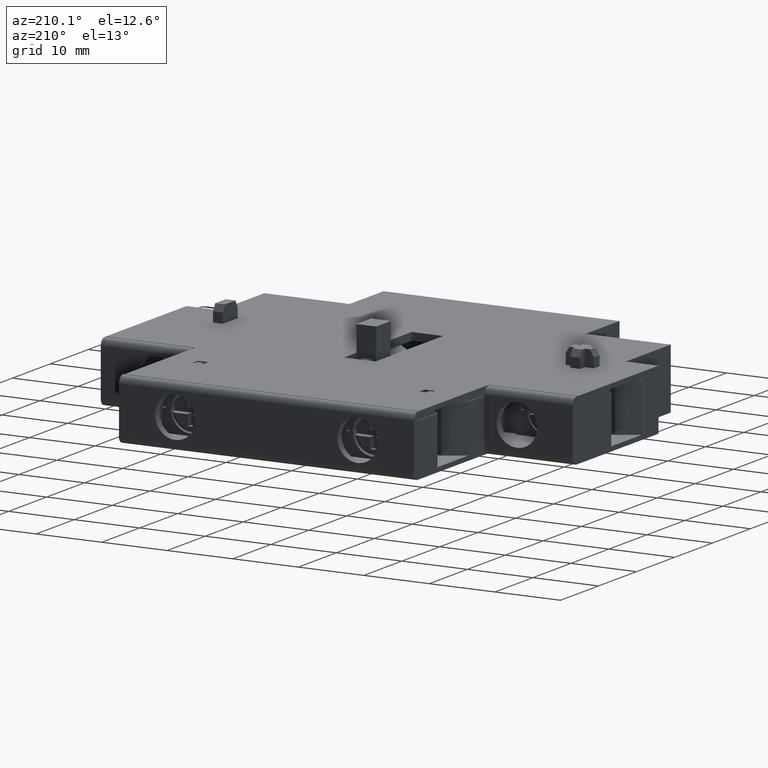
[diagram: clean part render]
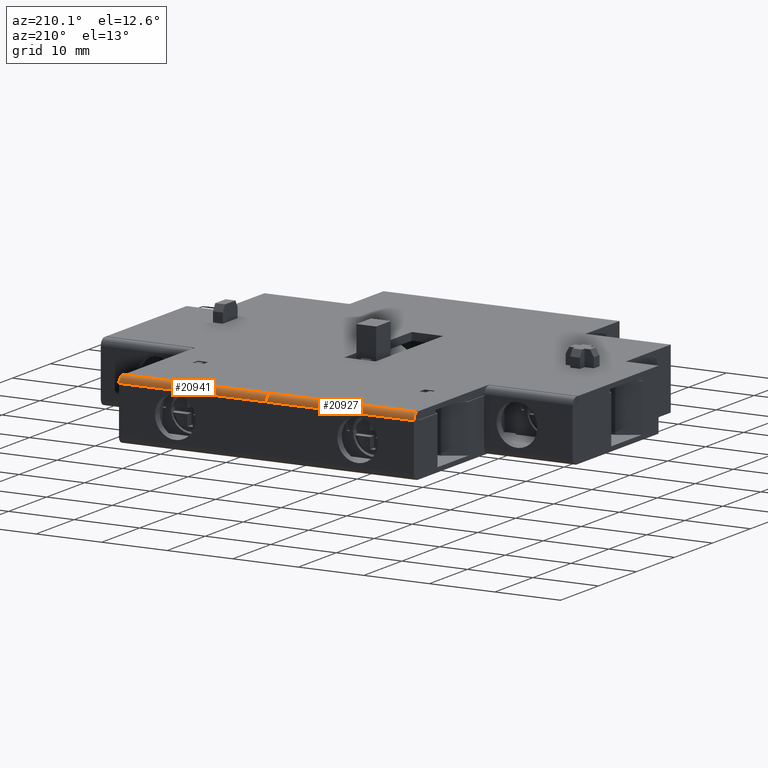
[diagram: same view with one multi-face feature highlighted, each face labeled with its STEP entity id]
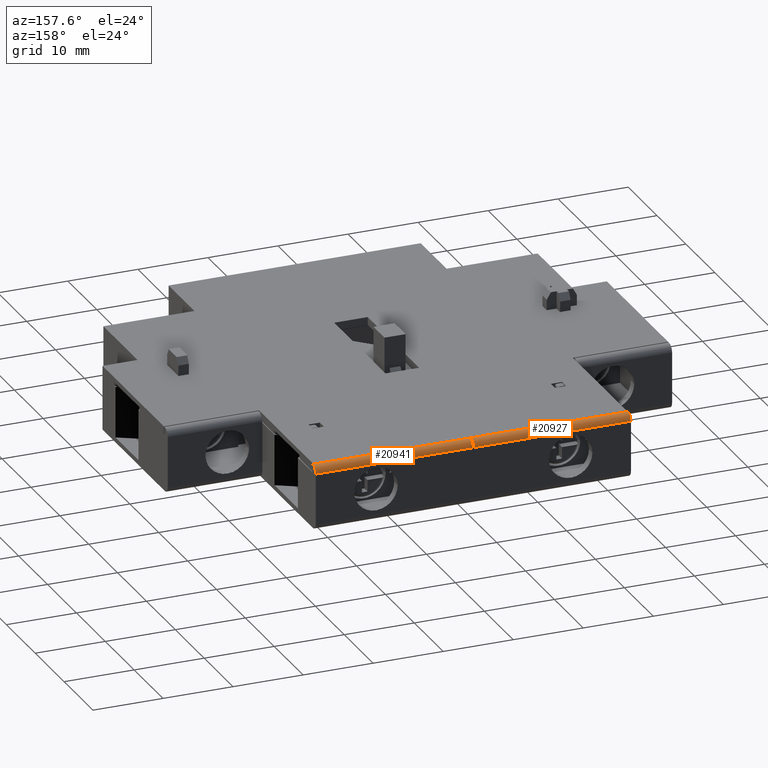
[diagram: same view with one multi-face feature highlighted, each face labeled with its STEP entity id]
A machine part, auxiliary view. The highlighted faces form ONE feature: a constant-radius fillet chain: 2 tangent blend faces with common blend radius 1 mm. The faces share edges in the B-rep.
A second angle (auxiliary view) of the same feature is appended — it is thin or edge-on in the first view.
Their STEP definitions:
[1] entity #20941 (Cylinder):
#9725=CARTESIAN_POINT('',(1.288110546778E1,7.791970650536E1,1.28E1));
#9726=DIRECTION('',(-1.E0,0.E0,0.E0));
#9727=DIRECTION('',(0.E0,-1.098560998964E-5,9.999999999397E-1));
#9728=AXIS2_PLACEMENT_3D('',#9725,#9726,#9727);
#9730=DIRECTION('',(9.999999999999E-1,3.598188413889E-12,4.150122044342E-7));
#9731=VECTOR('',#9730,2.25E1);
#9732=CARTESIAN_POINT('',(1.288110546778E1,7.891970650526E1,1.279998407086E1));
#9733=LINE('',#9732,#9731);
#9734=DIRECTION('',(1.E0,2.278497858141E-7,2.719720744911E-12));
#9735=VECTOR('',#9734,2.25E1);
#9736=CARTESIAN_POINT('',(1.288110546778E1,7.791969112550E1,1.379999999990E1));
#9737=LINE('',#9736,#9735);
#13045=CARTESIAN_POINT('',(3.538110546778E1,7.791970650536E1,1.28E1));
#13046=DIRECTION('',(-1.E0,0.E0,0.E0));
#13047=DIRECTION('',(0.E0,-8.788489992604E-6,9.999999999614E-1));
#13048=AXIS2_PLACEMENT_3D('',#13045,#13046,#13047);
#16600=CARTESIAN_POINT('',(1.288110546778E1,7.891970650526E1,1.279998407086E1));
#16601=VERTEX_POINT('',#16600);
#16602=CARTESIAN_POINT('',(1.288110546778E1,7.791969551975E1,1.379999999994E1));
#16603=VERTEX_POINT('',#16602);
#16604=CARTESIAN_POINT('',(3.538110546778E1,7.791969625212E1,1.379999999996E1));
#16605=VERTEX_POINT('',#16604);
#16606=CARTESIAN_POINT('',(3.538110546778E1,7.891970650534E1,1.279999340863E1));
#16607=VERTEX_POINT('',#16606);
#20928=CARTESIAN_POINT('',(1.243110546778E1,7.791970650536E1,1.28E1));
#20929=DIRECTION('',(1.E0,0.E0,0.E0));
#20930=DIRECTION('',(0.E0,9.393727128462E-1,-3.428978074586E-1));
#20931=AXIS2_PLACEMENT_3D('',#20928,#20929,#20930);
#20932=CYLINDRICAL_SURFACE('',#20931,1.000000000004E0);
#20934=ORIENTED_EDGE('',*,*,#20933,.F.);
#20935=ORIENTED_EDGE('',*,*,#20920,.T.);
#20936=ORIENTED_EDGE('',*,*,#20884,.T.);
#20938=ORIENTED_EDGE('',*,*,#20937,.F.);
#20939=EDGE_LOOP('',(#20934,#20935,#20936,#20938));
#20940=FACE_OUTER_BOUND('',#20939,.F.);
#20941=ADVANCED_FACE('',(#20940),#20932,.T.);
#9729=CIRCLE('',#9728,1.000000000004E0);
#13049=CIRCLE('',#13048,1.000000000004E0);
#20884=EDGE_CURVE('',#16601,#16607,#9733,.T.);
#20920=EDGE_CURVE('',#16603,#16601,#9729,.T.);
#20933=EDGE_CURVE('',#16603,#16605,#9737,.T.);
#20937=EDGE_CURVE('',#16605,#16607,#13049,.T.);
[2] entity #20927 (Cylinder):
#9610=CARTESIAN_POINT('',(-9.618894532220E0,7.791970650536E1,1.28E1));
#9611=DIRECTION('',(1.E0,0.E0,0.E0));
#9612=DIRECTION('',(0.E0,9.999999999614E-1,-8.788489997933E-6));
#9613=AXIS2_PLACEMENT_3D('',#9610,#9611,#9612);
#9721=DIRECTION('',(1.E0,-1.979414163442E-12,-2.522623633341E-7));
#9722=VECTOR('',#9721,2.25E1);
#9723=CARTESIAN_POINT('',(-9.618894532220E0,7.891970650530E1,1.279998974676E1));
#9724=LINE('',#9723,#9722);
#9725=CARTESIAN_POINT('',(1.288110546778E1,7.791970650536E1,1.28E1));
#9726=DIRECTION('',(-1.E0,0.E0,0.E0));
#9727=DIRECTION('',(0.E0,-1.098560998964E-5,9.999999999397E-1));
#9728=AXIS2_PLACEMENT_3D('',#9725,#9726,#9727);
#9738=DIRECTION('',(9.999999999999E-1,-3.580496152406E-7,-3.599688448553E-12));
#9739=VECTOR('',#9738,2.25E1);
#9740=CARTESIAN_POINT('',(-9.618894532220E0,7.791969918162E1,1.379999999998E1));
#9741=LINE('',#9740,#9739);
#16574=CARTESIAN_POINT('',(-9.618894532220E0,7.891970650530E1,
1.279998974676E1));
#16575=VERTEX_POINT('',#16574);
#16576=CARTESIAN_POINT('',(-9.618894532220E0,7.791970650536E1,1.38E1));
#16577=VERTEX_POINT('',#16576);
#16600=CARTESIAN_POINT('',(1.288110546778E1,7.891970650526E1,1.279998407086E1));
#16601=VERTEX_POINT('',#16600);
#16602=CARTESIAN_POINT('',(1.288110546778E1,7.791969551975E1,1.379999999994E1));
#16603=VERTEX_POINT('',#16602);
#20914=CARTESIAN_POINT('',(-1.006889453222E1,7.791970650536E1,1.28E1));
#20915=DIRECTION('',(1.E0,0.E0,0.E0));
#20916=DIRECTION('',(0.E0,9.393727128462E-1,-3.428978074586E-1));
#20917=AXIS2_PLACEMENT_3D('',#20914,#20915,#20916);
#20918=CYLINDRICAL_SURFACE('',#20917,1.000000000004E0);
#20919=ORIENTED_EDGE('',*,*,#20902,.T.);
#20921=ORIENTED_EDGE('',*,*,#20920,.F.);
#20923=ORIENTED_EDGE('',*,*,#20922,.F.);
#20924=ORIENTED_EDGE('',*,*,#20822,.F.);
#20925=EDGE_LOOP('',(#20919,#20921,#20923,#20924));
#20926=FACE_OUTER_BOUND('',#20925,.F.);
#20927=ADVANCED_FACE('',(#20926),#20918,.T.);
#9614=CIRCLE('',#9613,1.000000000004E0);
#9729=CIRCLE('',#9728,1.000000000004E0);
#20822=EDGE_CURVE('',#16575,#16577,#9614,.T.);
#20902=EDGE_CURVE('',#16575,#16601,#9724,.T.);
#20920=EDGE_CURVE('',#16603,#16601,#9729,.T.);
#20922=EDGE_CURVE('',#16577,#16603,#9741,.T.);